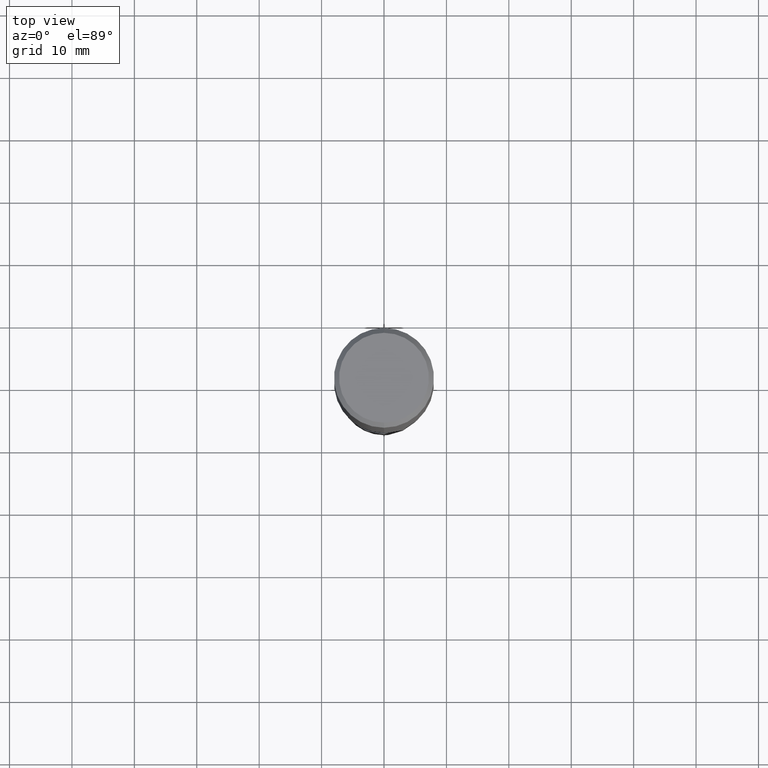
[diagram: clean part render]
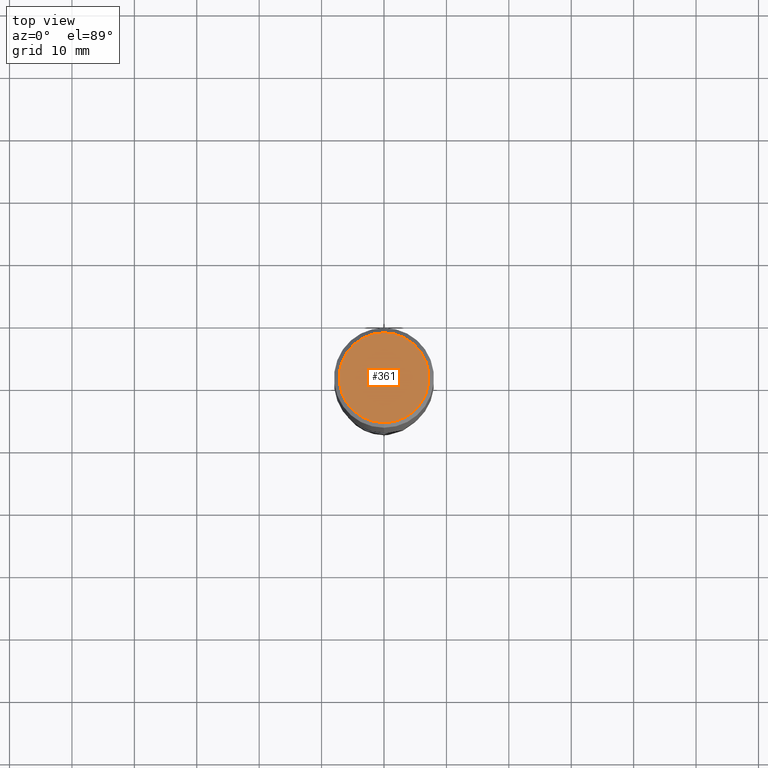
[diagram: same view with one face highlighted and labeled with its STEP entity id]
A machine part, top view. The second image highlights one B-rep face of the part: STEP entity #361.
In plain terms, the highlighted planar face has unit normal (-0, 0, 1).
Its self-contained STEP definition (entity closure, byte-faithful):
#361=ADVANCED_FACE('',(#900),#901,.T.);
#491=VERTEX_POINT('',#1041);
#587=EDGE_CURVE('',#491,#629,#1141,.T.);
#629=VERTEX_POINT('',#1186);
#725=EDGE_CURVE('',#629,#491,#1296,.T.);
#900=FACE_OUTER_BOUND('',#1829,.T.);
#901=PLANE('',#1830);
#1041=CARTESIAN_POINT('',(0.0,7.2,0.0));
#1141=CIRCLE('',#3532,7.2);
#1186=CARTESIAN_POINT('',(8.81716574752112E-016,-7.2,0.0));
#1296=CIRCLE('',#4920,7.2);
#1829=EDGE_LOOP('',(#5376,#5377));
#1830=AXIS2_PLACEMENT_3D('',#5378,#5379,#5380);
#3532=AXIS2_PLACEMENT_3D('',#5602,#5603,#5604);
#4920=AXIS2_PLACEMENT_3D('',#5798,#5799,#5800);
#5376=ORIENTED_EDGE('',*,*,#587,.F.);
#5377=ORIENTED_EDGE('',*,*,#725,.F.);
#5378=CARTESIAN_POINT('',(0.0,3.6,0.0));
#5379=DIRECTION('',(-0.0,0.0,1.0));
#5380=DIRECTION('',(0.0,-1.0,0.0));
#5602=CARTESIAN_POINT('',(0.0,0.0,0.0));
#5603=DIRECTION('',(0.0,0.0,-1.0));
#5604=DIRECTION('',(0.0,1.0,0.0));
#5798=CARTESIAN_POINT('',(0.0,0.0,0.0));
#5799=DIRECTION('',(0.0,0.0,-1.0));
#5800=DIRECTION('',(0.0,1.0,0.0));